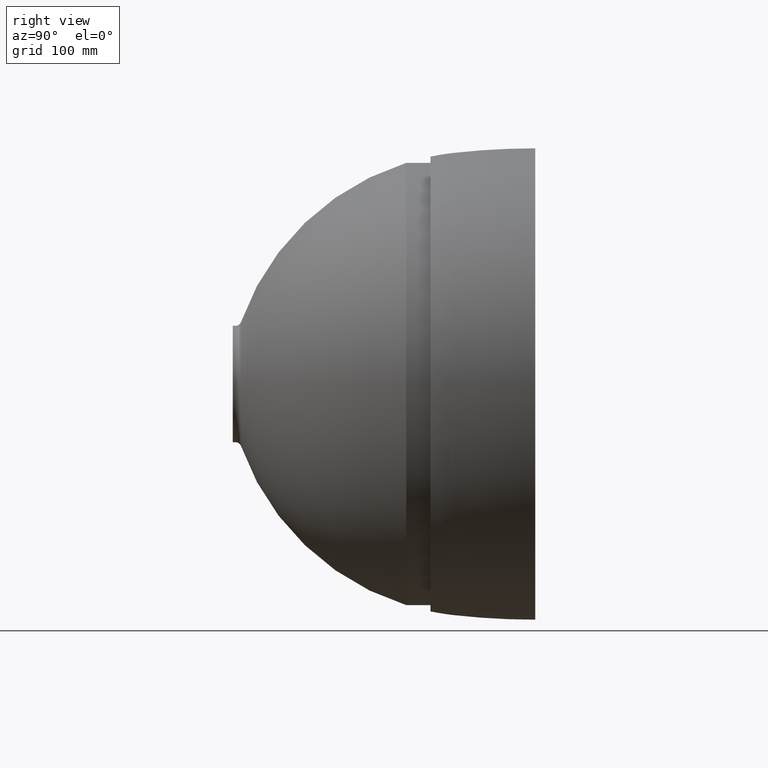
[diagram: clean part render]
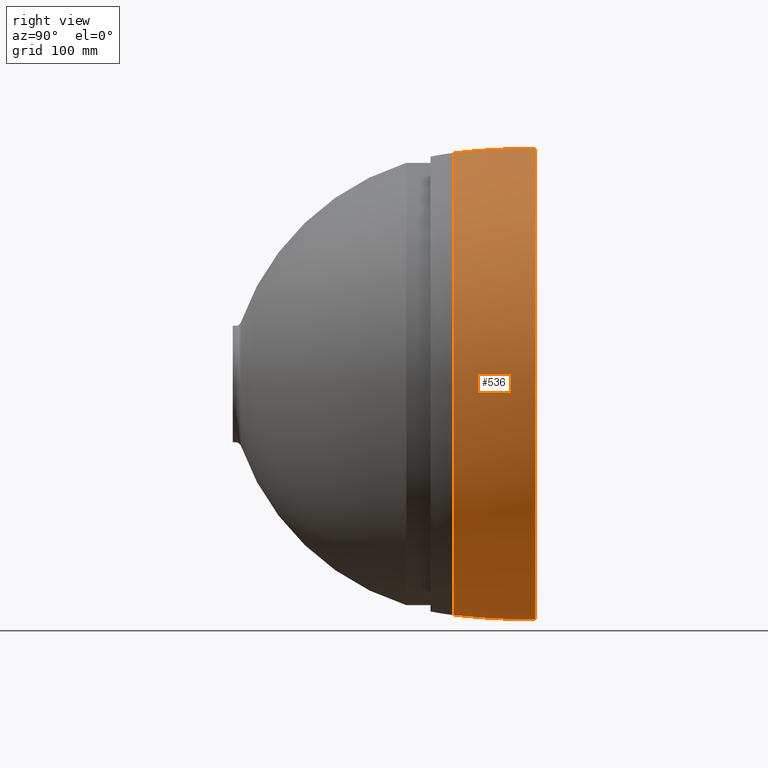
[diagram: same view with one face highlighted and labeled with its STEP entity id]
A machine part, right view. The second image highlights one B-rep face of the part: STEP entity #536.
In plain terms, the highlighted toroidal blend (fillet) surface has major radius 424.746 mm and minor (blend) radius 627.246 mm.
Its self-contained STEP definition (entity closure, byte-faithful):
#7 = VERTEX_POINT ( 'NONE', #480 ) ;
#40 = CARTESIAN_POINT ( 'NONE',  ( 0.0000000000000000000, 260.0000000000000000, -202.4999999999996600 ) ) ;
#57 = DIRECTION ( 'NONE',  ( 0.0000000000000000000, 0.0000000000000000000, 1.000000000000000000 ) ) ;
#69 = EDGE_CURVE ( 'NONE', #692, #681, #606, .T. ) ;
#80 = DIRECTION ( 'NONE',  ( 0.0000000000000000000, 0.0000000000000000000, -1.000000000000000000 ) ) ;
#110 = TOROIDAL_SURFACE ( 'NONE', #188, -424.7456170315086900, 627.2456170315089100 ) ;
#114 = DIRECTION ( 'NONE',  ( -0.0000000000000000000, -1.000000000000000000, -0.0000000000000000000 ) ) ;
#122 = CIRCLE ( 'NONE', #318, 198.5817961994824000 ) ;
#123 = CARTESIAN_POINT ( 'NONE',  ( 0.0000000000000000000, 260.0000000000000000, 424.7456170315086900 ) ) ;
#151 = CARTESIAN_POINT ( 'NONE',  ( 0.0000000000000000000, 260.0000000000000000, 0.0000000000000000000 ) ) ;
#188 = AXIS2_PLACEMENT_3D ( 'NONE', #151, #368, #80 ) ;
#229 = EDGE_LOOP ( 'NONE', ( #573, #406, #393, #361 ) ) ;
#244 = EDGE_CURVE ( 'NONE', #692, #7, #403, .T. ) ;
#254 = EDGE_CURVE ( 'NONE', #7, #334, #481, .T. ) ;
#278 = FACE_OUTER_BOUND ( 'NONE', #229, .T. ) ;
#318 = AXIS2_PLACEMENT_3D ( 'NONE', #353, #114, #425 ) ;
#320 = DIRECTION ( 'NONE',  ( -1.224646799147353500E-016, 0.0000000000000000000, -1.000000000000000000 ) ) ;
#322 = DIRECTION ( 'NONE',  ( 1.000000000000000000, 0.0000000000000000000, -1.224646799147353200E-016 ) ) ;
#334 = VERTEX_POINT ( 'NONE', #357 ) ;
#353 = CARTESIAN_POINT ( 'NONE',  ( 0.0000000000000000000, 189.9999999999998600, 0.0000000000000000000 ) ) ;
#357 = CARTESIAN_POINT ( 'NONE',  ( 2.455917689559837200E-014, 189.9999999999998600, 198.5817961994823700 ) ) ;
#361 = ORIENTED_EDGE ( 'NONE', *, *, #69, .F. ) ;
#368 = DIRECTION ( 'NONE',  ( -0.0000000000000000000, -1.000000000000000000, -0.0000000000000000000 ) ) ;
#391 = CARTESIAN_POINT ( 'NONE',  ( 0.0000000000000000000, 189.9999999999998600, -198.5817961994824000 ) ) ;
#393 = ORIENTED_EDGE ( 'NONE', *, *, #398, .F. ) ;
#398 = EDGE_CURVE ( 'NONE', #681, #334, #122, .T. ) ;
#402 = AXIS2_PLACEMENT_3D ( 'NONE', #575, #634, #527 ) ;
#403 = CIRCLE ( 'NONE', #402, 202.5000000000002300 ) ;
#406 = ORIENTED_EDGE ( 'NONE', *, *, #254, .T. ) ;
#415 = DIRECTION ( 'NONE',  ( -1.000000000000000000, 0.0000000000000000000, 0.0000000000000000000 ) ) ;
#425 = DIRECTION ( 'NONE',  ( 0.0000000000000000000, 0.0000000000000000000, -1.000000000000000000 ) ) ;
#427 = AXIS2_PLACEMENT_3D ( 'NONE', #628, #322, #320 ) ;
#480 = CARTESIAN_POINT ( 'NONE',  ( 2.479909768273386100E-014, 260.0000000000000000, 202.4999999999996600 ) ) ;
#481 = CIRCLE ( 'NONE', #427, 627.2456170315088000 ) ;
#527 = DIRECTION ( 'NONE',  ( 0.0000000000000000000, 0.0000000000000000000, -1.000000000000000000 ) ) ;
#536 = ADVANCED_FACE ( 'NONE', ( #278 ), #110, .T. ) ;
#573 = ORIENTED_EDGE ( 'NONE', *, *, #244, .T. ) ;
#575 = CARTESIAN_POINT ( 'NONE',  ( 0.0000000000000000000, 260.0000000000000000, 0.0000000000000000000 ) ) ;
#606 = CIRCLE ( 'NONE', #617, 627.2456170315088000 ) ;
#617 = AXIS2_PLACEMENT_3D ( 'NONE', #123, #415, #57 ) ;
#628 = CARTESIAN_POINT ( 'NONE',  ( -5.201633603495046300E-014, 260.0000000000000000, -424.7456170315086900 ) ) ;
#634 = DIRECTION ( 'NONE',  ( -0.0000000000000000000, -1.000000000000000000, -0.0000000000000000000 ) ) ;
#681 = VERTEX_POINT ( 'NONE', #391 ) ;
#692 = VERTEX_POINT ( 'NONE', #40 ) ;